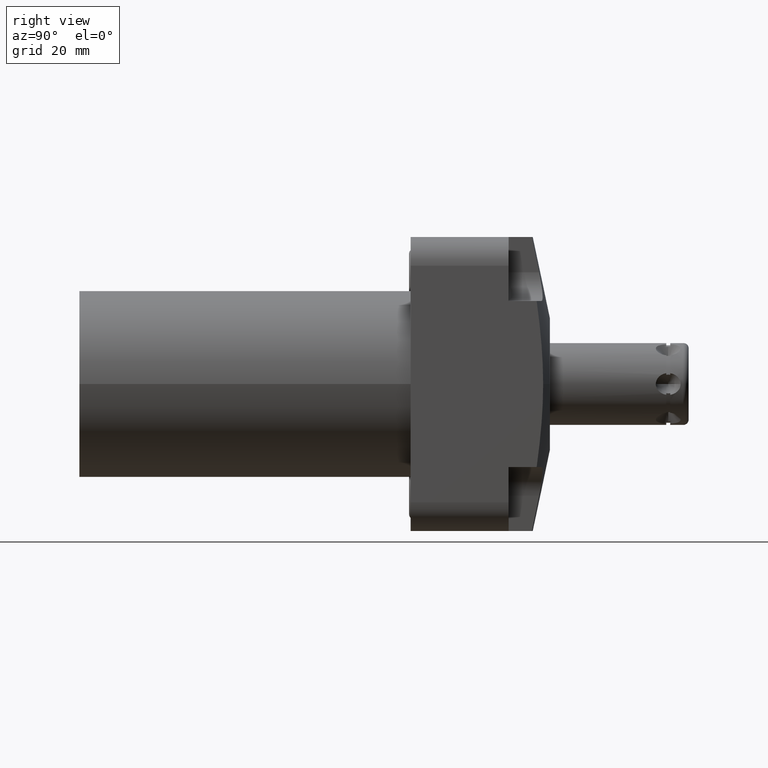
[diagram: clean part render]
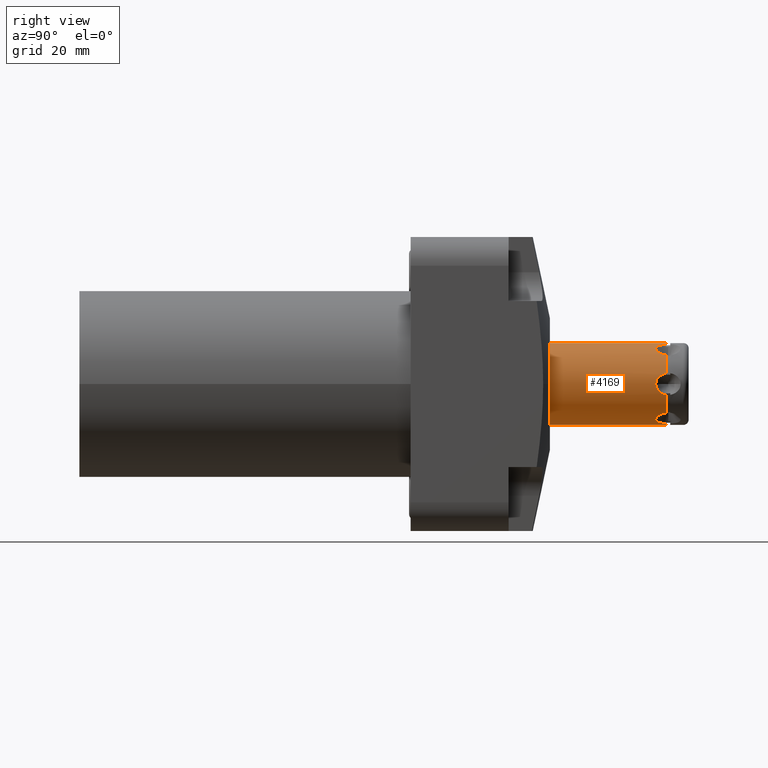
[diagram: same view with one face highlighted and labeled with its STEP entity id]
A machine part, right view. The second image highlights one B-rep face of the part: STEP entity #4169.
In plain terms, the highlighted cylindrical surface (partial cylindrical patch) has radius 7.9375 mm, axis along (0, 1, 0).
Its self-contained STEP definition (entity closure, byte-faithful):
#1014=CARTESIAN_POINT('',(0.E0,2.7E1,0.E0));
#1015=DIRECTION('',(0.E0,1.E0,0.E0));
#1016=DIRECTION('',(0.E0,0.E0,1.E0));
#1017=AXIS2_PLACEMENT_3D('',#1014,#1015,#1016);
#1130=CARTESIAN_POINT('',(0.E0,4.9569E1,0.E0));
#1131=DIRECTION('',(0.E0,1.E0,0.E0));
#1132=DIRECTION('',(0.E0,0.E0,1.E0));
#1133=AXIS2_PLACEMENT_3D('',#1130,#1131,#1132);
#1138=CARTESIAN_POINT('',(2.011961883098E0,4.9569E1,7.678275563625E0));
#1139=CARTESIAN_POINT('',(2.046769014831E0,4.932485122193E1,7.669154945105E0));
#1140=CARTESIAN_POINT('',(2.175764325156E0,4.887387370618E1,7.635283120360E0));
#1141=CARTESIAN_POINT('',(2.536283261310E0,4.827362872404E1,7.525695728554E0));
#1142=CARTESIAN_POINT('',(2.993795235886E0,4.784330205412E1,7.357397322342E0));
#1143=CARTESIAN_POINT('',(3.484773343996E0,4.759123791085E1,7.138660814645E0));
#1144=CARTESIAN_POINT('',(3.972013276821E0,4.750987540080E1,6.879614002936E0));
#1145=CARTESIAN_POINT('',(4.439908816083E0,4.759126048927E1,6.587207196275E0));
#1146=CARTESIAN_POINT('',(4.874781401733E0,4.784329322532E1,6.271411777446E0));
#1147=CARTESIAN_POINT('',(5.249296043162E0,4.827361783826E1,5.959339220192E0));
#1148=CARTESIAN_POINT('',(5.524462094185E0,4.887385829206E1,5.701913472298E0));
#1149=CARTESIAN_POINT('',(5.618297816071E0,4.932484461667E1,5.607132127219E0));
#1150=CARTESIAN_POINT('',(5.643600753807E0,4.9569E1,5.581547884022E0));
#1155=CARTESIAN_POINT('',(0.E0,4.9569E1,0.E0));
#1156=DIRECTION('',(0.E0,1.E0,0.E0));
#1157=DIRECTION('',(7.110048193773E-1,0.E0,7.031871349948E-1));
#1158=AXIS2_PLACEMENT_3D('',#1155,#1156,#1157);
#1163=CARTESIAN_POINT('',(7.9375E0,4.7537E1,0.E0));
#1164=CARTESIAN_POINT('',(7.9375E0,4.7537E1,1.718562720992E-1));
#1165=CARTESIAN_POINT('',(7.926599949816E0,4.758313285584E1,5.039749083678E-1));
#1166=CARTESIAN_POINT('',(7.880834126984E0,4.778748573598E1,9.820075510692E-1));
#1167=CARTESIAN_POINT('',(7.817928669777E0,4.810188317176E1,1.389468179031E0));
#1168=CARTESIAN_POINT('',(7.750084019600E0,4.850799219730E1,1.723512439102E0));
#1169=CARTESIAN_POINT('',(7.688842955798E0,4.900677190225E1,1.974627998939E0));
#1170=CARTESIAN_POINT('',(7.663154775213E0,4.937398316893E1,2.069007298496E0));
#1171=CARTESIAN_POINT('',(7.655562636906E0,4.9569E1,2.096727679603E0));
#1176=CARTESIAN_POINT('',(7.655562636906E0,4.9569E1,-2.096727679603E0));
#1177=CARTESIAN_POINT('',(7.663161247373E0,4.937381692061E1,-2.068983667372E0));
#1178=CARTESIAN_POINT('',(7.688929662485E0,4.900644648286E1,-1.974226305448E0));
#1179=CARTESIAN_POINT('',(7.749539860395E0,4.851181816726E1,-1.725862000608E0));
#1180=CARTESIAN_POINT('',(7.817887923437E0,4.810181985891E1,-1.390126657830E0));
#1181=CARTESIAN_POINT('',(7.881173204572E0,4.778594341222E1,
-9.791129331912E-1));
#1182=CARTESIAN_POINT('',(7.926442992512E0,4.758383796792E1,
-5.054797829108E-1));
#1183=CARTESIAN_POINT('',(7.9375E0,4.7537E1,-1.724916309215E-1));
#1184=CARTESIAN_POINT('',(7.9375E0,4.7537E1,0.E0));
#1189=CARTESIAN_POINT('',(0.E0,4.9569E1,0.E0));
#1190=DIRECTION('',(0.E0,1.E0,0.E0));
#1191=DIRECTION('',(9.644803322086E-1,0.E0,-2.641546682965E-1));
#1192=AXIS2_PLACEMENT_3D('',#1189,#1190,#1191);
#1197=CARTESIAN_POINT('',(5.643600753807E0,4.9569E1,-5.581547884022E0));
#1198=CARTESIAN_POINT('',(5.618298606951E0,4.932485224809E1,-5.607131327546E0));
#1199=CARTESIAN_POINT('',(5.524467511701E0,4.887387653546E1,-5.701908163312E0));
#1200=CARTESIAN_POINT('',(5.249305755551E0,4.827363494703E1,-5.959330284452E0));
#1201=CARTESIAN_POINT('',(4.874801169713E0,4.784330775024E1,-6.271396687607E0));
#1202=CARTESIAN_POINT('',(4.439891229258E0,4.759124534033E1,-6.587221268976E0));
#1203=CARTESIAN_POINT('',(3.971934932333E0,4.750987392400E1,-6.879659642548E0));
#1204=CARTESIAN_POINT('',(3.484730617283E0,4.759125896482E1,-7.138679934962E0));
#1205=CARTESIAN_POINT('',(2.993796287903E0,4.784330380895E1,-7.357396452776E0));
#1206=CARTESIAN_POINT('',(2.536282447881E0,4.827362896761E1,-7.525696139237E0));
#1207=CARTESIAN_POINT('',(2.175764824419E0,4.887387311369E1,-7.635282925351E0));
#1208=CARTESIAN_POINT('',(2.046769062916E0,4.932485088465E1,-7.669154932505E0));
#1209=CARTESIAN_POINT('',(2.011961883098E0,4.9569E1,-7.678275563625E0));
#1214=CARTESIAN_POINT('',(0.E0,4.9569E1,0.E0));
#1215=DIRECTION('',(0.E0,1.E0,0.E0));
#1216=DIRECTION('',(2.534755128313E-1,0.E0,-9.673418032913E-1));
#1217=AXIS2_PLACEMENT_3D('',#1214,#1215,#1216);
#1696=DIRECTION('',(0.E0,-1.E0,0.E0));
#1697=VECTOR('',#1696,2.2569E1);
#1698=CARTESIAN_POINT('',(0.E0,4.9569E1,7.9375E0));
#1699=LINE('',#1698,#1697);
#1703=DIRECTION('',(0.E0,-1.E0,0.E0));
#1704=VECTOR('',#1703,2.2569E1);
#1705=CARTESIAN_POINT('',(0.E0,4.9569E1,-7.9375E0));
#1706=LINE('',#1705,#1704);
#3118=CARTESIAN_POINT('',(0.E0,2.7E1,7.9375E0));
#3119=CARTESIAN_POINT('',(0.E0,2.7E1,-7.9375E0));
#3120=VERTEX_POINT('',#3118);
#3121=VERTEX_POINT('',#3119);
#3274=CARTESIAN_POINT('',(0.E0,4.9569E1,7.9375E0));
#3275=CARTESIAN_POINT('',(2.011961883098E0,4.9569E1,7.678275563625E0));
#3276=VERTEX_POINT('',#3274);
#3277=VERTEX_POINT('',#3275);
#3278=CARTESIAN_POINT('',(5.643600753807E0,4.9569E1,5.581547884022E0));
#3279=CARTESIAN_POINT('',(7.655562636906E0,4.9569E1,2.096727679603E0));
#3280=VERTEX_POINT('',#3278);
#3281=VERTEX_POINT('',#3279);
#3290=CARTESIAN_POINT('',(0.E0,4.9569E1,-7.9375E0));
#3292=VERTEX_POINT('',#3290);
#3332=CARTESIAN_POINT('',(7.655562636906E0,4.9569E1,-2.096727679603E0));
#3333=CARTESIAN_POINT('',(5.643600753807E0,4.9569E1,-5.581547884022E0));
#3334=VERTEX_POINT('',#3332);
#3335=VERTEX_POINT('',#3333);
#3359=CARTESIAN_POINT('',(7.9375E0,4.7537E1,0.E0));
#3361=VERTEX_POINT('',#3359);
#3366=CARTESIAN_POINT('',(2.011961883098E0,4.9569E1,-7.678275563625E0));
#3367=VERTEX_POINT('',#3366);
#4141=CARTESIAN_POINT('',(0.E0,2.56544E1,0.E0));
#4142=DIRECTION('',(0.E0,1.E0,0.E0));
#4143=DIRECTION('',(0.E0,0.E0,-1.E0));
#4144=AXIS2_PLACEMENT_3D('',#4141,#4142,#4143);
#4145=CYLINDRICAL_SURFACE('',#4144,7.9375E0);
#4147=ORIENTED_EDGE('',*,*,#4146,.T.);
#4149=ORIENTED_EDGE('',*,*,#4148,.T.);
#4151=ORIENTED_EDGE('',*,*,#4150,.T.);
#4153=ORIENTED_EDGE('',*,*,#4152,.F.);
#4155=ORIENTED_EDGE('',*,*,#4154,.F.);
#4157=ORIENTED_EDGE('',*,*,#4156,.T.);
#4159=ORIENTED_EDGE('',*,*,#4158,.T.);
#4161=ORIENTED_EDGE('',*,*,#4160,.T.);
#4163=ORIENTED_EDGE('',*,*,#4162,.T.);
#4164=ORIENTED_EDGE('',*,*,#4092,.F.);
#4166=ORIENTED_EDGE('',*,*,#4165,.F.);
#4167=EDGE_LOOP('',(#4147,#4149,#4151,#4153,#4155,#4157,#4159,#4161,#4163,#4164,
#4166));
#4168=FACE_OUTER_BOUND('',#4167,.F.);
#4169=ADVANCED_FACE('',(#4168),#4145,.T.);
#1018=CIRCLE('',#1017,7.9375E0);
#1134=CIRCLE('',#1133,7.9375E0);
#1151=B_SPLINE_CURVE_WITH_KNOTS('',3,(#1138,#1139,#1140,#1141,#1142,#1143,#1144,
#1145,#1146,#1147,#1148,#1149,#1150),.UNSPECIFIED.,.F.,.F.,(4,1,1,1,1,1,1,1,1,1,
4),(0.E0,1.E-1,2.E-1,3.E-1,4.E-1,5.E-1,6.E-1,7.E-1,8.E-1,9.E-1,1.E0),
.UNSPECIFIED.);
#1159=CIRCLE('',#1158,7.9375E0);
#1172=B_SPLINE_CURVE_WITH_KNOTS('',3,(#1163,#1164,#1165,#1166,#1167,#1168,#1169,
#1170,#1171),.UNSPECIFIED.,.F.,.F.,(4,1,1,1,1,1,4),(0.E0,1.666666666667E-1,
3.333333333333E-1,5.E-1,6.666666666667E-1,8.333333333333E-1,1.E0),
.UNSPECIFIED.);
#1185=B_SPLINE_CURVE_WITH_KNOTS('',3,(#1176,#1177,#1178,#1179,#1180,#1181,#1182,
#1183,#1184),.UNSPECIFIED.,.F.,.F.,(4,1,1,1,1,1,4),(0.E0,1.666666666667E-1,
3.333333333333E-1,5.E-1,6.666666666667E-1,8.333333333333E-1,1.E0),
.UNSPECIFIED.);
#1193=CIRCLE('',#1192,7.9375E0);
#1210=B_SPLINE_CURVE_WITH_KNOTS('',3,(#1197,#1198,#1199,#1200,#1201,#1202,#1203,
#1204,#1205,#1206,#1207,#1208,#1209),.UNSPECIFIED.,.F.,.F.,(4,1,1,1,1,1,1,1,1,1,
4),(0.E0,1.E-1,2.E-1,3.E-1,4.E-1,5.E-1,6.E-1,7.E-1,8.E-1,9.E-1,1.E0),
.UNSPECIFIED.);
#1218=CIRCLE('',#1217,7.9375E0);
#4092=EDGE_CURVE('',#3120,#3121,#1018,.T.);
#4146=EDGE_CURVE('',#3276,#3277,#1134,.T.);
#4148=EDGE_CURVE('',#3277,#3280,#1151,.T.);
#4150=EDGE_CURVE('',#3280,#3281,#1159,.T.);
#4152=EDGE_CURVE('',#3361,#3281,#1172,.T.);
#4154=EDGE_CURVE('',#3334,#3361,#1185,.T.);
#4156=EDGE_CURVE('',#3334,#3335,#1193,.T.);
#4158=EDGE_CURVE('',#3335,#3367,#1210,.T.);
#4160=EDGE_CURVE('',#3367,#3292,#1218,.T.);
#4162=EDGE_CURVE('',#3292,#3121,#1706,.T.);
#4165=EDGE_CURVE('',#3276,#3120,#1699,.T.);